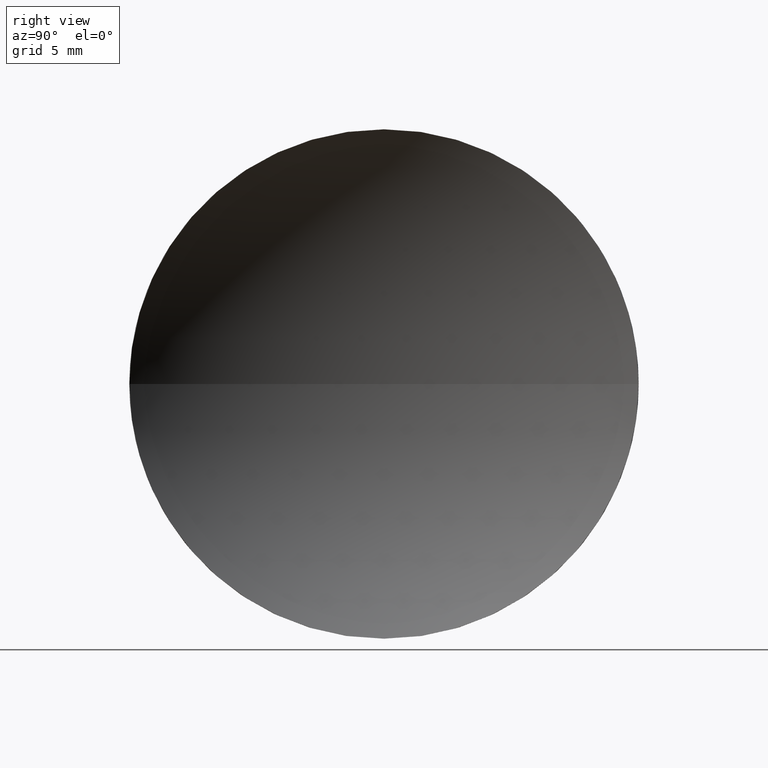
[diagram: clean part render]
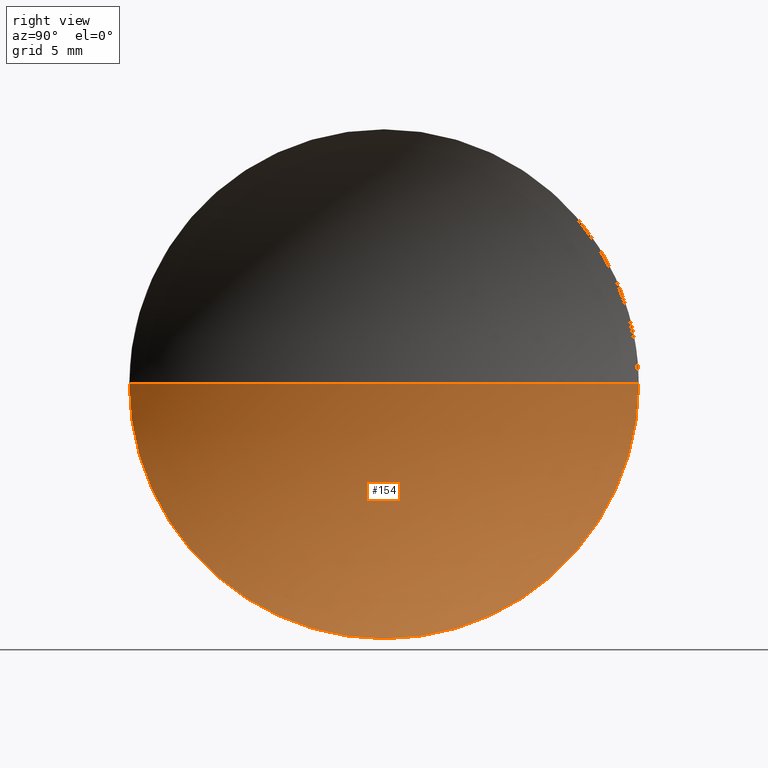
[diagram: same view with one face highlighted and labeled with its STEP entity id]
A machine part, right view. The second image highlights one B-rep face of the part: STEP entity #154.
In plain terms, the highlighted spherical surface has radius 20.65 mm.
Its self-contained STEP definition (entity closure, byte-faithful):
#4 = CIRCLE ( 'NONE', #84, 20.65000000000000200 ) ;
#6 = EDGE_LOOP ( 'NONE', ( #82, #152, #34, #138 ) ) ;
#10 = EDGE_CURVE ( 'NONE', #161, #37, #140, .T. ) ;
#11 = CIRCLE ( 'NONE', #94, 20.65000000000000200 ) ;
#12 = FACE_OUTER_BOUND ( 'NONE', #6, .T. ) ;
#16 = CARTESIAN_POINT ( 'NONE',  ( 80.18233705252612300, 32.61076812922678400, 0.0000000000000000000 ) ) ;
#17 = DIRECTION ( 'NONE',  ( 0.0000000000000000000, 0.0000000000000000000, 1.000000000000000000 ) ) ;
#27 = CARTESIAN_POINT ( 'NONE',  ( 63.74541215764386900, 32.61076812922678400, -12.49999999999999600 ) ) ;
#33 = DIRECTION ( 'NONE',  ( 0.0000000000000000000, -1.224646799147353200E-016, 1.000000000000000000 ) ) ;
#34 = ORIENTED_EDGE ( 'NONE', *, *, #67, .F. ) ;
#37 = VERTEX_POINT ( 'NONE', #27 ) ;
#53 = AXIS2_PLACEMENT_3D ( 'NONE', #156, #86, #103 ) ;
#55 = CARTESIAN_POINT ( 'NONE',  ( 80.18233705252612300, 32.61076812922678400, 0.0000000000000000000 ) ) ;
#66 = VERTEX_POINT ( 'NONE', #148 ) ;
#67 = EDGE_CURVE ( 'NONE', #157, #66, #11, .T. ) ;
#75 = DIRECTION ( 'NONE',  ( -1.000000000000000000, -0.0000000000000000000, -0.0000000000000000000 ) ) ;
#82 = ORIENTED_EDGE ( 'NONE', *, *, #10, .F. ) ;
#83 = CIRCLE ( 'NONE', #151, 12.49999999999999600 ) ;
#84 = AXIS2_PLACEMENT_3D ( 'NONE', #55, #33, #155 ) ;
#86 = DIRECTION ( 'NONE',  ( -1.000000000000000000, -0.0000000000000000000, -0.0000000000000000000 ) ) ;
#87 = DIRECTION ( 'NONE',  ( 0.0000000000000000000, 0.0000000000000000000, -1.000000000000000000 ) ) ;
#94 = AXIS2_PLACEMENT_3D ( 'NONE', #16, #87, #116 ) ;
#103 = DIRECTION ( 'NONE',  ( 0.0000000000000000000, 0.0000000000000000000, 1.000000000000000000 ) ) ;
#106 = CARTESIAN_POINT ( 'NONE',  ( 63.74541215764386900, 20.11076812922679100, 0.0000000000000000000 ) ) ;
#112 = SPHERICAL_SURFACE ( 'NONE', #182, 20.65000000000000200 ) ;
#116 = DIRECTION ( 'NONE',  ( -1.000000000000000000, 0.0000000000000000000, 0.0000000000000000000 ) ) ;
#135 = EDGE_CURVE ( 'NONE', #161, #66, #4, .T. ) ;
#138 = ORIENTED_EDGE ( 'NONE', *, *, #173, .F. ) ;
#140 = CIRCLE ( 'NONE', #53, 12.49999999999999600 ) ;
#143 = CARTESIAN_POINT ( 'NONE',  ( 63.74541215764386900, 32.61076812922678400, 0.0000000000000000000 ) ) ;
#144 = CARTESIAN_POINT ( 'NONE',  ( 63.74541215764386900, 45.11076812922678400, 1.530808498934191100E-015 ) ) ;
#148 = CARTESIAN_POINT ( 'NONE',  ( 59.53233705252612400, 32.61076812922678400, 0.0000000000000000000 ) ) ;
#151 = AXIS2_PLACEMENT_3D ( 'NONE', #143, #75, #17 ) ;
#152 = ORIENTED_EDGE ( 'NONE', *, *, #135, .T. ) ;
#153 = DIRECTION ( 'NONE',  ( 0.0000000000000000000, -1.000000000000000000, 0.0000000000000000000 ) ) ;
#154 = ADVANCED_FACE ( 'NONE', ( #12 ), #112, .F. ) ;
#155 = DIRECTION ( 'NONE',  ( 0.0000000000000000000, -1.000000000000000000, -1.224646799147353200E-016 ) ) ;
#156 = CARTESIAN_POINT ( 'NONE',  ( 63.74541215764386900, 32.61076812922678400, 0.0000000000000000000 ) ) ;
#157 = VERTEX_POINT ( 'NONE', #106 ) ;
#158 = DIRECTION ( 'NONE',  ( 0.0000000000000000000, 0.0000000000000000000, 1.000000000000000000 ) ) ;
#161 = VERTEX_POINT ( 'NONE', #144 ) ;
#169 = CARTESIAN_POINT ( 'NONE',  ( 80.18233705252612300, 32.61076812922678400, 0.0000000000000000000 ) ) ;
#173 = EDGE_CURVE ( 'NONE', #37, #157, #83, .T. ) ;
#182 = AXIS2_PLACEMENT_3D ( 'NONE', #169, #158, #153 ) ;